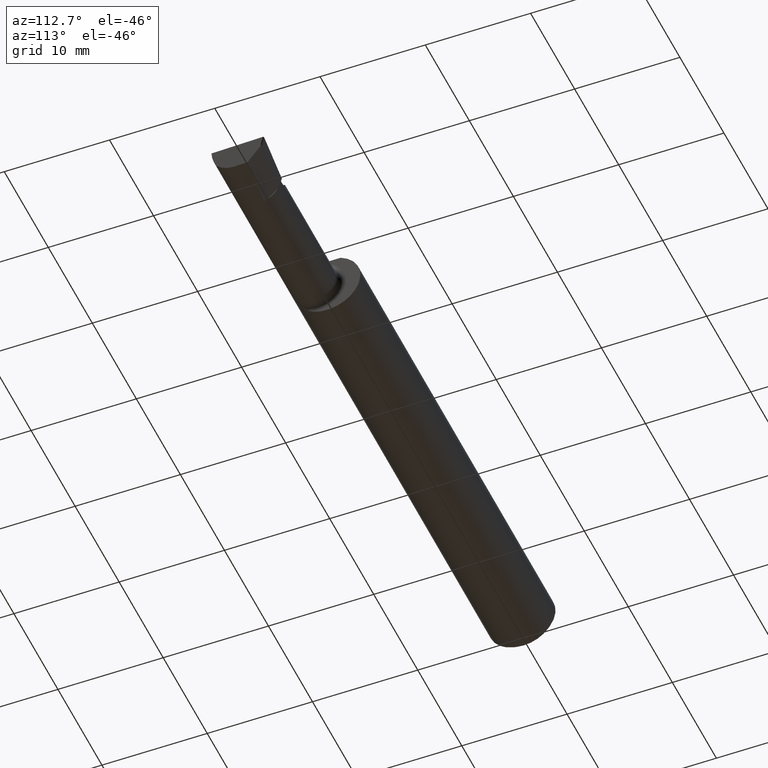
[diagram: clean part render]
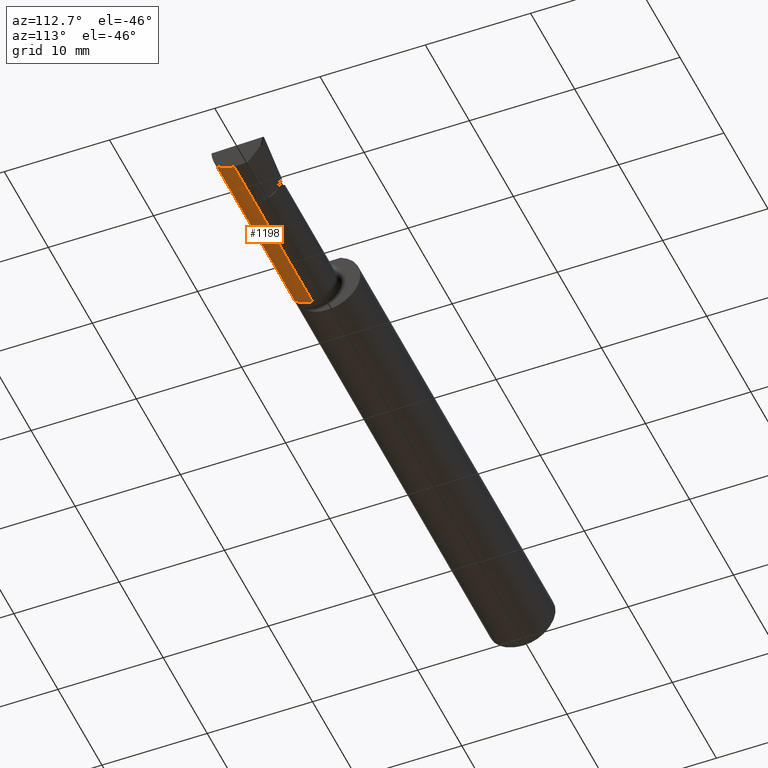
[diagram: same view with one face highlighted and labeled with its STEP entity id]
A machine part, auxiliary view. The second image highlights one B-rep face of the part: STEP entity #1198.
In plain terms, the highlighted cylindrical surface (edge-blend (fillet) strip) has radius 2.2606 mm, axis along (-1, -0, -0).
Its self-contained STEP definition (entity closure, byte-faithful):
#10 = CARTESIAN_POINT ( 'NONE',  ( 2.500000000000001776, -0.04385000000000000009, -0.08899999999999999578 ) ) ;
#15 = EDGE_CURVE ( 'NONE', #636, #719, #993, .T. ) ;
#53 = CARTESIAN_POINT ( 'NONE',  ( 2.290000000000000036, -0.04385000000000000009, -0.08899999999999999578 ) ) ;
#134 = VERTEX_POINT ( 'NONE', #555 ) ;
#190 = LINE ( 'NONE', #1119, #225 ) ;
#198 = CARTESIAN_POINT ( 'NONE',  ( 2.485954910319315925, -0.09223924859979830415, -0.07885108388459924345 ) ) ;
#211 = CARTESIAN_POINT ( 'NONE',  ( 2.487785916505024453, -0.1093425883694412876, -0.06026376082415470931 ) ) ;
#220 = CARTESIAN_POINT ( 'NONE',  ( 1.784999999999999920, -0.04384999999999998621, -0.08899999999999999578 ) ) ;
#225 = VECTOR ( 'NONE', #617, 39.37007874015748143 ) ;
#281 = DIRECTION ( 'NONE',  ( 1.000000000000000000, 0.000000000000000000, 0.000000000000000000 ) ) ;
#283 = EDGE_LOOP ( 'NONE', ( #370, #970, #1139, #997, #1262 ) ) ;
#370 = ORIENTED_EDGE ( 'NONE', *, *, #1029, .F. ) ;
#409 = CARTESIAN_POINT ( 'NONE',  ( 2.487785916505024453, -0.1093425883694412876, -0.06026376082415470931 ) ) ;
#475 = EDGE_CURVE ( 'NONE', #134, #1225, #481, .T. ) ;
#477 = DIRECTION ( 'NONE',  ( 0.000000000000000000, 0.000000000000000000, -1.000000000000000000 ) ) ;
#481 = CIRCLE ( 'NONE', #1130, 0.08899999999999999578 ) ;
#513 = CARTESIAN_POINT ( 'NONE',  ( 2.485985413007094191, -0.04385000000000000009, -0.08899999999999999578 ) ) ;
#555 = CARTESIAN_POINT ( 'NONE',  ( 1.784999999999999920, -0.1093425883694413014, -0.06026376082415467461 ) ) ;
#611 = DIRECTION ( 'NONE',  ( -1.000000000000000000, -0.000000000000000000, -0.000000000000000000 ) ) ;
#612 = EDGE_CURVE ( 'NONE', #719, #730, #708, .T. ) ;
#616 = EDGE_CURVE ( 'NONE', #636, #134, #1234, .T. ) ;
#617 = DIRECTION ( 'NONE',  ( -1.000000000000000000, -0.000000000000000000, -0.000000000000000000 ) ) ;
#636 = VERTEX_POINT ( 'NONE', #409 ) ;
#650 = CYLINDRICAL_SURFACE ( 'NONE', #1154, 0.08899999999999999578 ) ;
#708 = LINE ( 'NONE', #10, #1280 ) ;
#719 = VERTEX_POINT ( 'NONE', #748 ) ;
#724 = DIRECTION ( 'NONE',  ( 0.000000000000000000, 0.000000000000000000, 1.000000000000000000 ) ) ;
#730 = VERTEX_POINT ( 'NONE', #53 ) ;
#748 = CARTESIAN_POINT ( 'NONE',  ( 2.485985413007094191, -0.04385000000000000009, -0.08899999999999999578 ) ) ;
#753 = VECTOR ( 'NONE', #611, 39.37007874015748143 ) ;
#806 = DIRECTION ( 'NONE',  ( -1.000000000000000000, -0.000000000000000000, -0.000000000000000000 ) ) ;
#813 = CARTESIAN_POINT ( 'NONE',  ( 2.485319017819460186, -0.06910891545235438305, -0.08900000000000000966 ) ) ;
#935 = DIRECTION ( 'NONE',  ( -1.000000000000000000, -0.000000000000000000, -0.000000000000000000 ) ) ;
#956 = CARTESIAN_POINT ( 'NONE',  ( 1.760000000000000009, -0.04385000000000000009, 0.000000000000000000 ) ) ;
#970 = ORIENTED_EDGE ( 'NONE', *, *, #612, .F. ) ;
#991 = CARTESIAN_POINT ( 'NONE',  ( 1.784999999999999920, -0.04385000000000000009, 0.000000000000000000 ) ) ;
#993 =( BOUNDED_CURVE ( )  B_SPLINE_CURVE ( 3, ( #211, #198, #813, #513 ),
 .UNSPECIFIED., .F., .T. ) 
 B_SPLINE_CURVE_WITH_KNOTS ( ( 4, 4 ),
 ( 5.667882814633647293, 6.494836076230706468 ),
 .UNSPECIFIED. ) 
 CURVE ( )  GEOMETRIC_REPRESENTATION_ITEM ( )  RATIONAL_B_SPLINE_CURVE ( ( 1.000000000000000000, 0.9438196436970136549, 0.9438196436970136549, 1.000000000000000000 ) ) 
 REPRESENTATION_ITEM ( '' )  );
#997 = ORIENTED_EDGE ( 'NONE', *, *, #616, .T. ) ;
#1029 = EDGE_CURVE ( 'NONE', #730, #1225, #190, .T. ) ;
#1068 = FACE_OUTER_BOUND ( 'NONE', #283, .T. ) ;
#1119 = CARTESIAN_POINT ( 'NONE',  ( 1.760000000000000009, -0.04384999999999998621, -0.08899999999999999578 ) ) ;
#1130 = AXIS2_PLACEMENT_3D ( 'NONE', #991, #281, #477 ) ;
#1139 = ORIENTED_EDGE ( 'NONE', *, *, #15, .F. ) ;
#1154 = AXIS2_PLACEMENT_3D ( 'NONE', #956, #935, #724 ) ;
#1198 = ADVANCED_FACE ( 'NONE', ( #1068 ), #650, .T. ) ;
#1225 = VERTEX_POINT ( 'NONE', #220 ) ;
#1229 = CARTESIAN_POINT ( 'NONE',  ( 2.024999999999999911, -0.1093425883694413014, -0.06026376082415467461 ) ) ;
#1234 = LINE ( 'NONE', #1229, #753 ) ;
#1262 = ORIENTED_EDGE ( 'NONE', *, *, #475, .T. ) ;
#1280 = VECTOR ( 'NONE', #806, 39.37007874015748143 ) ;